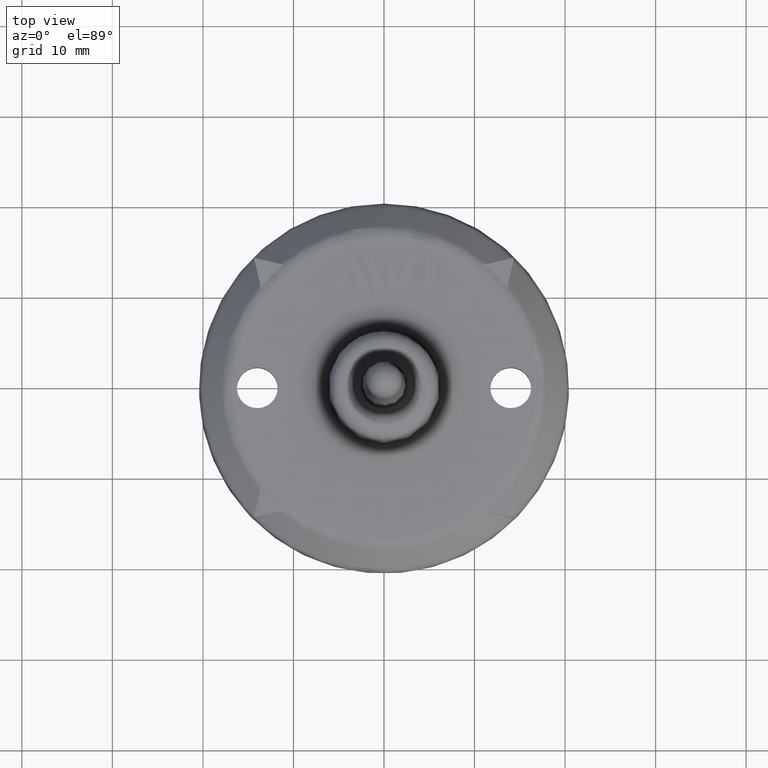
[diagram: clean part render]
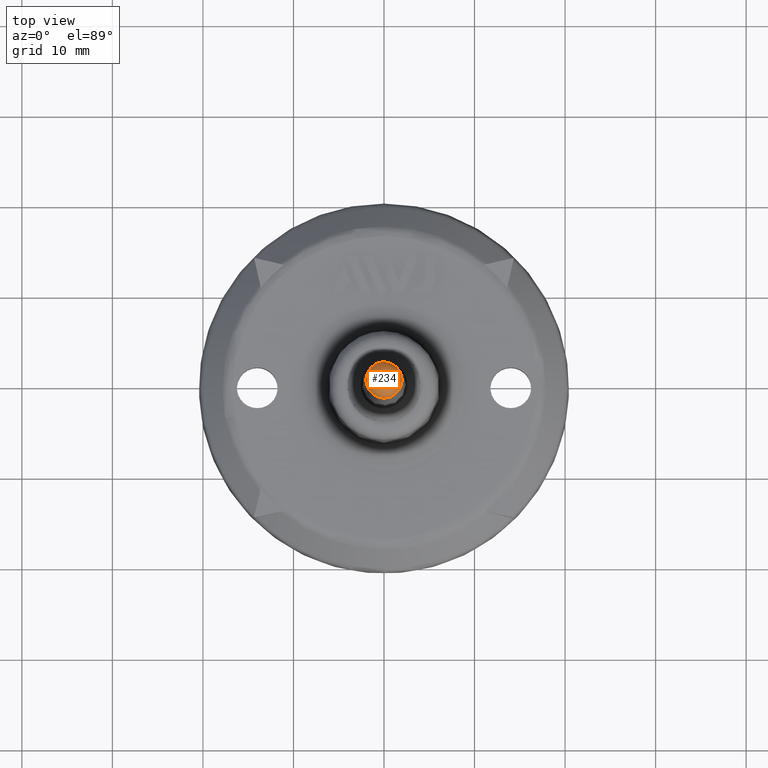
[diagram: same view with one face highlighted and labeled with its STEP entity id]
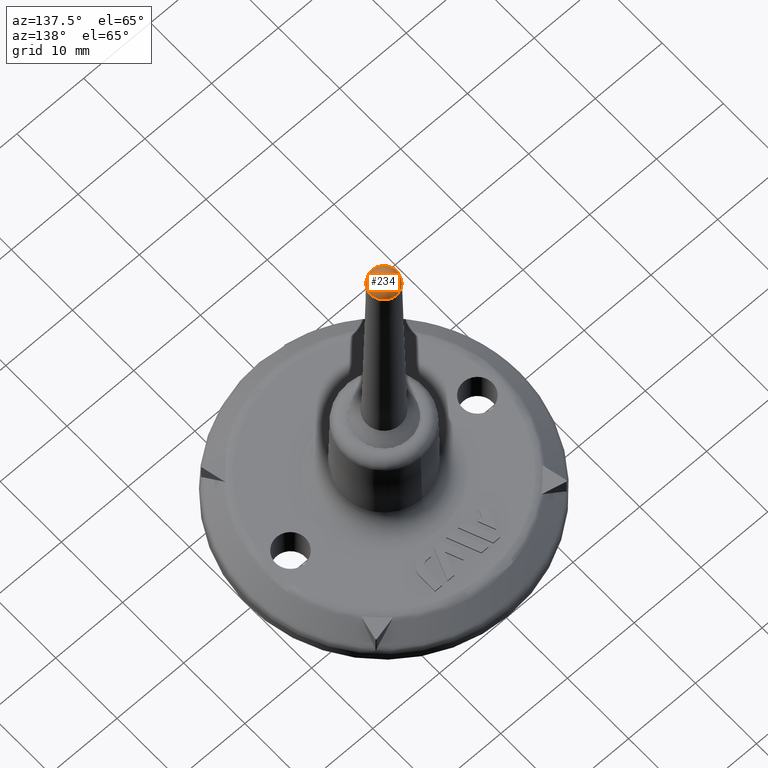
[diagram: same view with one face highlighted and labeled with its STEP entity id]
A machine part, top view. The second image highlights one B-rep face of the part: STEP entity #234.
A second angle (auxiliary view) of the same face is appended — the face is thin or edge-on in the first view.
In plain terms, the highlighted spherical surface has radius 2 mm.
Its self-contained STEP definition (entity closure, byte-faithful):
#234 = ADVANCED_FACE( '', ( #499 ), #500, .T. );
#499 = FACE_OUTER_BOUND( '', #775, .T. );
#500 = SPHERICAL_SURFACE( '', #776, 2.00000000000000 );
#775 = EDGE_LOOP( '', ( #1645 ) );
#776 = AXIS2_PLACEMENT_3D( '', #1646, #1647, #1648 );
#1645 = ORIENTED_EDGE( '', *, *, #1937, .F. );
#1646 = CARTESIAN_POINT( '', ( 3.93659776769267E-024, 6.42911502195647E-015, 54.4996279999966 ) );
#1647 = DIRECTION( '', ( -7.42616500954294E-026, 4.89772725781145E-026, -1.00000000000000 ) );
#1648 = DIRECTION( '', ( 0.307631829620031, 0.951505468930490, 2.37568954219158E-026 ) );
#1937 = EDGE_CURVE( '', #2381, #2381, #2382, .T. );
#2381 = VERTEX_POINT( '', #3163 );
#2382 = CIRCLE( '', #3164, 2.00000000000000 );
#3163 = CARTESIAN_POINT( '', ( -1.90301093786098, 0.615263659240069, 54.4996279999965 ) );
#3164 = AXIS2_PLACEMENT_3D( '', #3516, #3517, #3518 );
#3516 = CARTESIAN_POINT( '', ( 3.93659776769266E-024, 6.42911502195647E-015, 54.4996279999965 ) );
#3517 = DIRECTION( '', ( -7.42616500954294E-026, 4.89772725781145E-026, -1.00000000000000 ) );
#3518 = DIRECTION( '', ( -0.951505468930490, 0.307631829620031, 8.57273341706079E-026 ) );